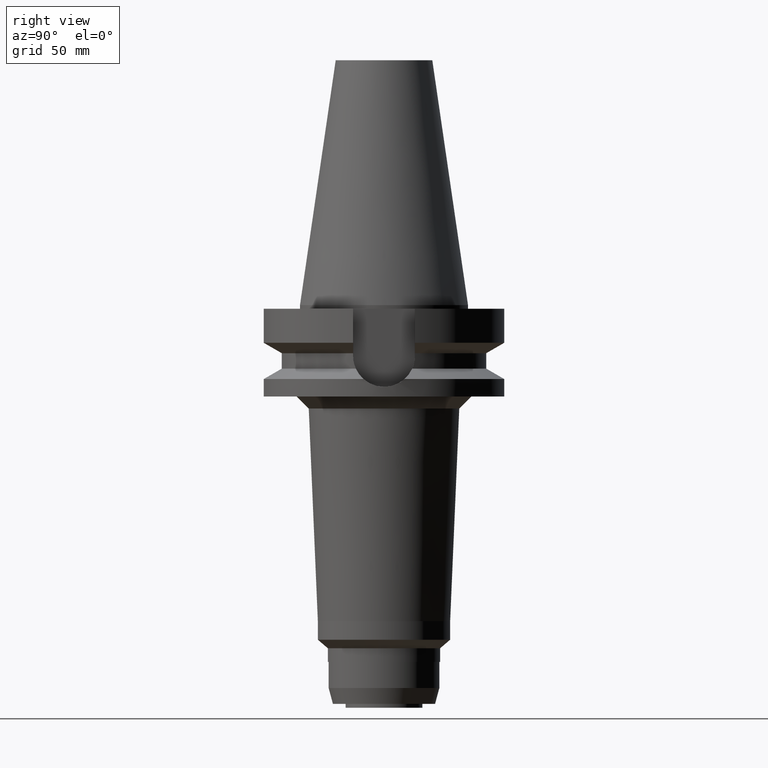
[diagram: clean part render]
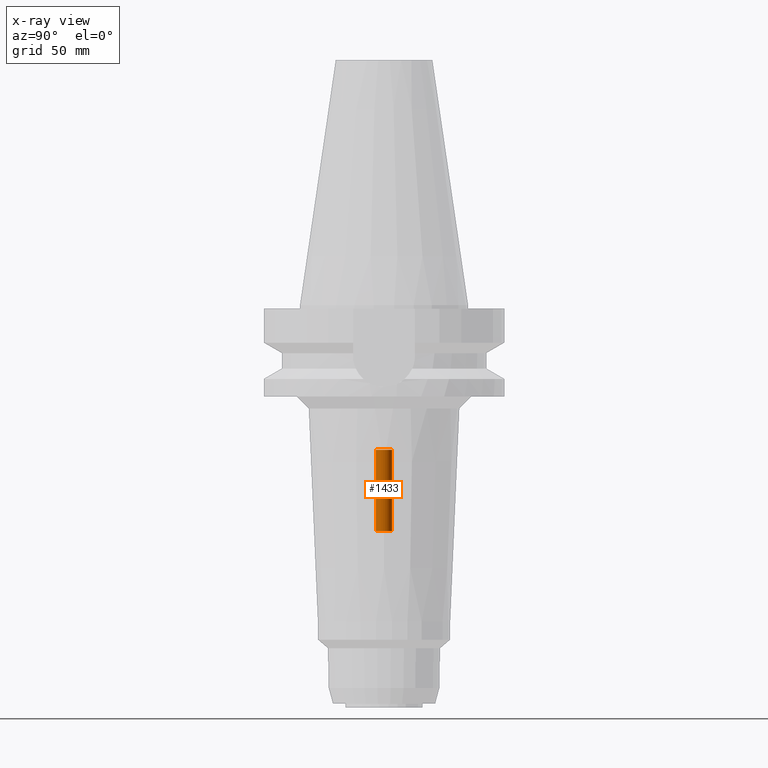
[diagram: x-ray — body ghosted, one internal face saturated and labeled with its STEP entity id]
A machine part, right view, then the same camera in x-ray: the body is ghosted and one INTERNAL B-rep face — a face not visible from any outside direction — is saturated and labeled: STEP entity #1433.
In plain terms, the highlighted cylindrical surface (edge-blend (fillet) strip) has radius 3.4 mm, axis along (0, 0, -1).
Its self-contained STEP definition (entity closure, byte-faithful):
#124=CARTESIAN_POINT('',(0.E0,2.636174699845E-14,-6.02E1));
#125=DIRECTION('',(0.E0,0.E0,1.E0));
#126=DIRECTION('',(0.E0,-1.E0,0.E0));
#127=AXIS2_PLACEMENT_3D('',#124,#125,#126);
#140=DIRECTION('',(0.E0,0.E0,1.E0));
#141=VECTOR('',#140,3.38E1);
#142=CARTESIAN_POINT('',(0.E0,3.4E0,-9.4E1));
#143=LINE('',#142,#141);
#147=DIRECTION('',(0.E0,0.E0,1.E0));
#148=VECTOR('',#147,3.38E1);
#149=CARTESIAN_POINT('',(0.E0,-3.4E0,-9.4E1));
#150=LINE('',#149,#148);
#178=CARTESIAN_POINT('',(0.E0,2.636174699845E-14,-9.4E1));
#179=DIRECTION('',(0.E0,0.E0,-1.E0));
#180=DIRECTION('',(0.E0,1.E0,0.E0));
#181=AXIS2_PLACEMENT_3D('',#178,#179,#180);
#1148=CARTESIAN_POINT('',(0.E0,-3.4E0,-6.02E1));
#1149=CARTESIAN_POINT('',(0.E0,3.4E0,-6.02E1));
#1150=VERTEX_POINT('',#1148);
#1151=VERTEX_POINT('',#1149);
#1152=CARTESIAN_POINT('',(0.E0,3.4E0,-9.4E1));
#1153=VERTEX_POINT('',#1152);
#1154=CARTESIAN_POINT('',(0.E0,-3.4E0,-9.4E1));
#1155=VERTEX_POINT('',#1154);
#1419=CARTESIAN_POINT('',(0.E0,2.636174699845E-14,1.1526E2));
#1420=DIRECTION('',(0.E0,0.E0,-1.E0));
#1421=DIRECTION('',(0.E0,-1.E0,0.E0));
#1422=AXIS2_PLACEMENT_3D('',#1419,#1420,#1421);
#1423=CYLINDRICAL_SURFACE('',#1422,3.4E0);
#1425=ORIENTED_EDGE('',*,*,#1424,.T.);
#1426=ORIENTED_EDGE('',*,*,#1412,.F.);
#1428=ORIENTED_EDGE('',*,*,#1427,.F.);
#1430=ORIENTED_EDGE('',*,*,#1429,.F.);
#1431=EDGE_LOOP('',(#1425,#1426,#1428,#1430));
#1432=FACE_OUTER_BOUND('',#1431,.F.);
#128=CIRCLE('',#127,3.4E0);
#182=CIRCLE('',#181,3.4E0);
#1412=EDGE_CURVE('',#1150,#1151,#128,.T.);
#1424=EDGE_CURVE('',#1153,#1151,#143,.T.);
#1427=EDGE_CURVE('',#1155,#1150,#150,.T.);
#1429=EDGE_CURVE('',#1153,#1155,#182,.T.);
#1433=ADVANCED_FACE('',(#1432),#1423,.F.);